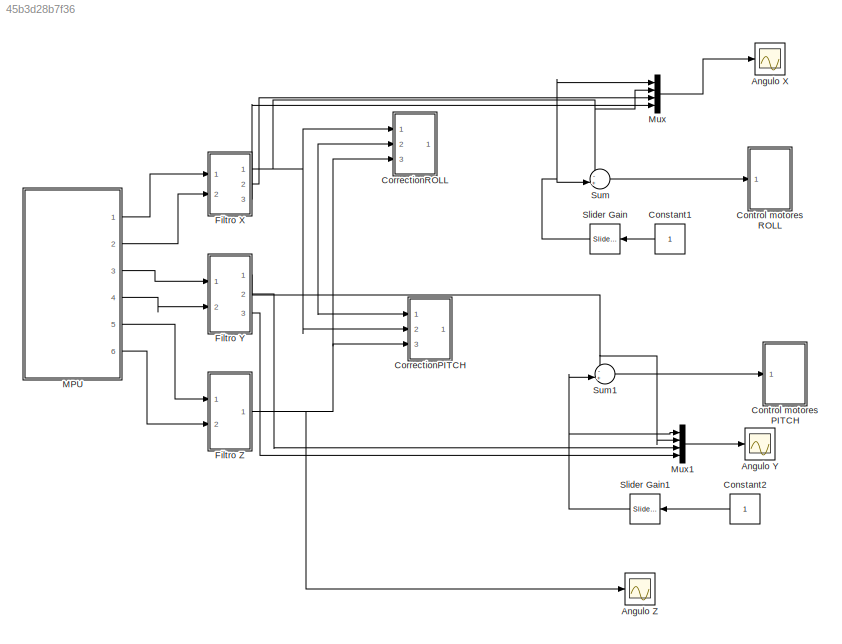
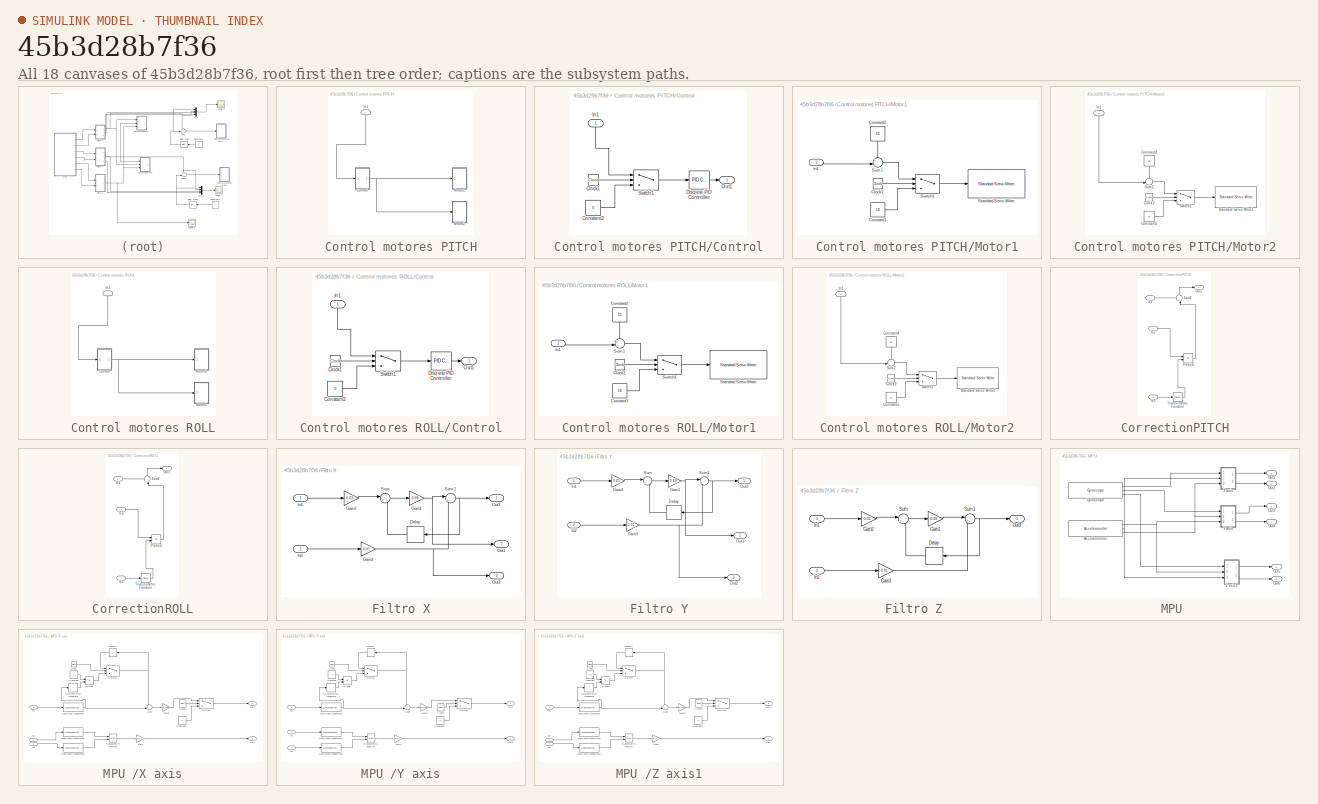
[diagram: thumbnail index - all 18 canvases of the model, root first then tree order]
MODEL slx_45b3d28b7f36
KIND model
CONFIG AbsTol = auto
CONFIG FixedStep = 0.03
CONFIG MaxStep = auto
CONFIG MinStep = auto
CONFIG RelTol = 1e-3
CONFIG SampleTimeConstraint = Unconstrained
CONFIG Solver = FixedStepDiscrete
CONFIG SolverMode = Auto
CONFIG SolverName = FixedStepDiscrete
CONFIG StartTime = 0.0
CONFIG StopTime = inf
BLOCK [Scope] Angulo X
  Ports = [1]
  ScopeSpecificationString = Simulink.scopes.TimeScopeBlockCfg('CurrentConfiguration', extmgr.ConfigurationSet(extmgr.Configuration('Core','General UI',true),extmgr.Configuration('Core','Source UI',true),extmgr.Configuration('Sources','WiredSimulink',true,'DataLoggingLimitDataPoints',true,'DataLoggingSaveFormat','Array','DataLoggingDecimation','1','DataLoggingDecimateData',true),extmgr.Configuration('Visuals','Time Domain',tr...<+1583ch>
BLOCK [Scope] Angulo Y
  Ports = [1]
  ScopeSpecificationString = Simulink.scopes.TimeScopeBlockCfg('CurrentConfiguration', extmgr.ConfigurationSet(extmgr.Configuration('Core','General UI',true),extmgr.Configuration('Core','Source UI',true),extmgr.Configuration('Sources','WiredSimulink',true,'DataLoggingVariableName','ScopeData1','DataLoggingLimitDataPoints',true,'DataLoggingSaveFormat','Array','DataLoggingDecimation','1','DataLoggingDecimateData',true),extmgr.C...<+1675ch>
BLOCK [Scope] Angulo Z 
  Ports = [1]
  ScopeSpecificationString = Simulink.scopes.TimeScopeBlockCfg('CurrentConfiguration', extmgr.ConfigurationSet(extmgr.Configuration('Core','General UI',true),extmgr.Configuration('Core','Source UI',true),extmgr.Configuration('Sources','WiredSimulink',true,'DataLoggingVariableName','ScopeData2','DataLoggingLimitDataPoints',true,'DataLoggingSaveFormat','Array','DataLoggingDecimation','1','DataLoggingDecimateData',true),extmgr.C...<+1587ch>
BLOCK [Constant] Constant1
BLOCK [Constant] Constant2
BLOCK [SubSystem] Control motores PITCH
  Ports = [1]
  RequestExecContextInheritance = off
  Variant = off
BLOCK [SubSystem] Control motores PITCH/Control
  Ports = [1, 1]
  RequestExecContextInheritance = off
  Variant = off
BLOCK [Clock] Control motores PITCH/Control/Clock1
BLOCK [Constant] Control motores PITCH/Control/Constant2
  Value = 0
BLOCK [Reference] Control motores PITCH/Control/Discrete PID Controller  REF=simulink/Continuous/PID Controller
  Ports = [1, 1]
  SourceBlock = simulink/Continuous/PID Controller
  SourceType = PID 1dof
BLOCK [Inport] Control motores PITCH/Control/In1
  IconDisplay = Port number
BLOCK [Outport] Control motores PITCH/Control/Out1
  IconDisplay = Port number
BLOCK [Switch] Control motores PITCH/Control/Switch1
  Criteria = u2 > Threshold
  InputSameDT = off
  SaturateOnIntegerOverflow = off
  Threshold = 3
BLOCK [Inport] Control motores PITCH/In1
  IconDisplay = Port number
BLOCK [SubSystem] Control motores PITCH/Motor1
  Ports = [1]
  RequestExecContextInheritance = off
  Variant = off
BLOCK [Clock] Control motores PITCH/Motor1/Clock1
BLOCK [Constant] Control motores PITCH/Motor1/Constant2
  Value = 55
BLOCK [Constant] Control motores PITCH/Motor1/Constant3
  Value = 18
BLOCK [Inport] Control motores PITCH/Motor1/In1
  IconDisplay = Port number
BLOCK [Reference] Control motores PITCH/Motor1/Standard Servo Write  REF=arduinolib/Standard Servo Write
  Ports = [1]
  SourceBlock = arduinolib/Standard Servo Write
  SourceType = Arduino Standard Servo Write
BLOCK [Sum] Control motores PITCH/Motor1/Sum1
  IconShape = round
  InputSameDT = off
  Inputs = +-|
  OutDataTypeStr = Inherit: Inherit via internal rule
  Ports = [2, 1]
  SaturateOnIntegerOverflow = off
BLOCK [Switch] Control motores PITCH/Motor1/Switch1
  Criteria = u2 > Threshold
  InputSameDT = off
  SaturateOnIntegerOverflow = off
  Threshold = 3
BLOCK [SubSystem] Control motores PITCH/Motor2
  Ports = [1]
  RequestExecContextInheritance = off
  Variant = off
BLOCK [Clock] Control motores PITCH/Motor2/Clock2
BLOCK [Constant] Control motores PITCH/Motor2/Constant4
  Value = 55
BLOCK [Constant] Control motores PITCH/Motor2/Constant5
  Value = 18
BLOCK [Inport] Control motores PITCH/Motor2/In1
  IconDisplay = Port number
BLOCK [Reference] Control motores PITCH/Motor2/Standard Servo Write1  REF=arduinolib/Standard Servo Write
  Ports = [1]
  SourceBlock = arduinolib/Standard Servo Write
  SourceType = Arduino Standard Servo Write
BLOCK [Sum] Control motores PITCH/Motor2/Sum2
  IconShape = round
  InputSameDT = off
  Inputs = ++|
  OutDataTypeStr = Inherit: Inherit via internal rule
  Ports = [2, 1]
  SaturateOnIntegerOverflow = off
BLOCK [Switch] Control motores PITCH/Motor2/Switch2
  Criteria = u2 > Threshold
  InputSameDT = off
  SaturateOnIntegerOverflow = off
  Threshold = 3
BLOCK [SubSystem] Control motores ROLL
  Ports = [1]
  RequestExecContextInheritance = off
  Variant = off
BLOCK [SubSystem] Control motores ROLL/Control
  Ports = [1, 1]
  RequestExecContextInheritance = off
  Variant = off
BLOCK [Clock] Control motores ROLL/Control/Clock1
BLOCK [Constant] Control motores ROLL/Control/Constant2
  Value = 0
BLOCK [Reference] Control motores ROLL/Control/Discrete PID Controller  REF=simulink/Continuous/PID Controller
  Ports = [1, 1]
  SourceBlock = simulink/Continuous/PID Controller
  SourceType = PID 1dof
BLOCK [Inport] Control motores ROLL/Control/In1
  IconDisplay = Port number
BLOCK [Outport] Control motores ROLL/Control/Out1
  IconDisplay = Port number
BLOCK [Switch] Control motores ROLL/Control/Switch1
  Criteria = u2 > Threshold
  InputSameDT = off
  SaturateOnIntegerOverflow = off
  Threshold = 3
BLOCK [Inport] Control motores ROLL/In1
  IconDisplay = Port number
BLOCK [SubSystem] Control motores ROLL/Motor1
  Ports = [1]
  RequestExecContextInheritance = off
  Variant = off
BLOCK [Clock] Control motores ROLL/Motor1/Clock1
BLOCK [Constant] Control motores ROLL/Motor1/Constant2
  Value = 55
BLOCK [Constant] Control motores ROLL/Motor1/Constant3
  Value = 18
BLOCK [Inport] Control motores ROLL/Motor1/In1
  IconDisplay = Port number
BLOCK [Reference] Control motores ROLL/Motor1/Standard Servo Write  REF=arduinolib/Standard Servo Write
  Ports = [1]
  SourceBlock = arduinolib/Standard Servo Write
  SourceType = Arduino Standard Servo Write
BLOCK [Sum] Control motores ROLL/Motor1/Sum1
  IconShape = round
  InputSameDT = off
  Inputs = +-|
  OutDataTypeStr = Inherit: Inherit via internal rule
  Ports = [2, 1]
  SaturateOnIntegerOverflow = off
BLOCK [Switch] Control motores ROLL/Motor1/Switch1
  Criteria = u2 > Threshold
  InputSameDT = off
  SaturateOnIntegerOverflow = off
  Threshold = 3
BLOCK [SubSystem] Control motores ROLL/Motor2
  Ports = [1]
  RequestExecContextInheritance = off
  Variant = off
BLOCK [Clock] Control motores ROLL/Motor2/Clock2
BLOCK [Constant] Control motores ROLL/Motor2/Constant4
  Value = 55
BLOCK [Constant] Control motores ROLL/Motor2/Constant5
  Value = 18
BLOCK [Inport] Control motores ROLL/Motor2/In1
  IconDisplay = Port number
BLOCK [Reference] Control motores ROLL/Motor2/Standard Servo Write1  REF=arduinolib/Standard Servo Write
  Ports = [1]
  SourceBlock = arduinolib/Standard Servo Write
  SourceType = Arduino Standard Servo Write
BLOCK [Sum] Control motores ROLL/Motor2/Sum2
  IconShape = round
  InputSameDT = off
  Inputs = ++|
  OutDataTypeStr = Inherit: Inherit via internal rule
  Ports = [2, 1]
  SaturateOnIntegerOverflow = off
BLOCK [Switch] Control motores ROLL/Motor2/Switch2
  Criteria = u2 > Threshold
  InputSameDT = off
  SaturateOnIntegerOverflow = off
  Threshold = 3
BLOCK [SubSystem] CorrectionPITCH
  Commented = on
  Ports = [3, 1]
  RequestExecContextInheritance = off
  Variant = off
BLOCK [Inport] CorrectionPITCH/In1
  IconDisplay = Port number
BLOCK [Inport] CorrectionPITCH/In2
  IconDisplay = Port number
  Port = 2
BLOCK [Inport] CorrectionPITCH/In3
  IconDisplay = Port number
  Port = 3
BLOCK [Outport] CorrectionPITCH/Out1
  IconDisplay = Port number
BLOCK [Product] CorrectionPITCH/Product
  InputSameDT = off
  OutDataTypeStr = Inherit: Inherit via internal rule
  Ports = [2, 1]
  RndMeth = Floor
  SaturateOnIntegerOverflow = off
BLOCK [Sum] CorrectionPITCH/Sum2
  IconShape = round
  InputSameDT = off
  Inputs = ++|
  OutDataTypeStr = Inherit: Inherit via internal rule
  Ports = [2, 1]
  SaturateOnIntegerOverflow = off
BLOCK [Trigonometry] CorrectionPITCH/Trigonometric Function
  Ports = [1, 1]
BLOCK [SubSystem] CorrectionROLL
  Commented = on
  Ports = [3, 1]
  RequestExecContextInheritance = off
  Variant = off
BLOCK [Inport] CorrectionROLL/In1
  IconDisplay = Port number
BLOCK [Inport] CorrectionROLL/In2
  IconDisplay = Port number
  Port = 2
BLOCK [Inport] CorrectionROLL/In3
  IconDisplay = Port number
  Port = 3
BLOCK [Outport] CorrectionROLL/Out1
  IconDisplay = Port number
BLOCK [Product] CorrectionROLL/Product
  InputSameDT = off
  OutDataTypeStr = Inherit: Inherit via internal rule
  Ports = [2, 1]
  RndMeth = Floor
  SaturateOnIntegerOverflow = off
BLOCK [Sum] CorrectionROLL/Sum2
  IconShape = round
  InputSameDT = off
  Inputs = +-|
  OutDataTypeStr = Inherit: Inherit via internal rule
  Ports = [2, 1]
  SaturateOnIntegerOverflow = off
BLOCK [Trigonometry] CorrectionROLL/Trigonometric Function
  Ports = [1, 1]
BLOCK [SubSystem] Filtro X
  Ports = [2, 3]
  RequestExecContextInheritance = off
  Variant = off
BLOCK [Delay] Filtro X/Delay
  DelayLength = 1
  InitialCondition = 0
  InputPortMap = u0
  Ports = [1, 1]
BLOCK [Gain] Filtro X/Gain1
  Gain = 0.99
  OutDataTypeStr = Inherit: Inherit via internal rule
  ParamDataTypeStr = Inherit: Inherit via internal rule
  SaturateOnIntegerOverflow = off
BLOCK [Gain] Filtro X/Gain2
  Gain = 0.03
  OutDataTypeStr = Inherit: Inherit via internal rule
  ParamDataTypeStr = Inherit: Inherit via internal rule
  SaturateOnIntegerOverflow = off
BLOCK [Gain] Filtro X/Gain3
  Gain = 0.01
  OutDataTypeStr = Inherit: Inherit via internal rule
  ParamDataTypeStr = Inherit: Inherit via internal rule
  SaturateOnIntegerOverflow = off
BLOCK [Inport] Filtro X/In1
  IconDisplay = Port number
BLOCK [Inport] Filtro X/In2
  IconDisplay = Port number
  Port = 2
BLOCK [Outport] Filtro X/Out1
  IconDisplay = Port number
  Port = 2
BLOCK [Outport] Filtro X/Out2
  IconDisplay = Port number
  Port = 3
BLOCK [Outport] Filtro X/Out3
  IconDisplay = Port number
BLOCK [Sum] Filtro X/Sum
  IconShape = round
  InputSameDT = off
  Inputs = |++
  OutDataTypeStr = Inherit: Inherit via internal rule
  Ports = [2, 1]
  SaturateOnIntegerOverflow = off
BLOCK [Sum] Filtro X/Sum1
  IconShape = round
  InputSameDT = off
  Inputs = |++
  OutDataTypeStr = Inherit: Inherit via internal rule
  Ports = [2, 1]
  SaturateOnIntegerOverflow = off
BLOCK [SubSystem] Filtro Y
  Ports = [2, 3]
  RequestExecContextInheritance = off
  Variant = off
BLOCK [Delay] Filtro Y/Delay
  DelayLength = 1
  InitialCondition = 0
  InputPortMap = u0
  Ports = [1, 1]
BLOCK [Gain] Filtro Y/Gain1
  Gain = 0.99
  OutDataTypeStr = Inherit: Inherit via internal rule
  ParamDataTypeStr = Inherit: Inherit via internal rule
  SaturateOnIntegerOverflow = off
BLOCK [Gain] Filtro Y/Gain2
  Gain = 0.03
  OutDataTypeStr = Inherit: Inherit via internal rule
  ParamDataTypeStr = Inherit: Inherit via internal rule
  SaturateOnIntegerOverflow = off
BLOCK [Gain] Filtro Y/Gain3
  Gain = 0.01
  OutDataTypeStr = Inherit: Inherit via internal rule
  ParamDataTypeStr = Inherit: Inherit via internal rule
  SaturateOnIntegerOverflow = off
BLOCK [Inport] Filtro Y/In1
  IconDisplay = Port number
BLOCK [Inport] Filtro Y/In2
  IconDisplay = Port number
  Port = 2
BLOCK [Outport] Filtro Y/Out1
  IconDisplay = Port number
  Port = 2
BLOCK [Outport] Filtro Y/Out2
  IconDisplay = Port number
  Port = 3
BLOCK [Outport] Filtro Y/Out3
  IconDisplay = Port number
BLOCK [Sum] Filtro Y/Sum
  IconShape = round
  InputSameDT = off
  Inputs = |++
  OutDataTypeStr = Inherit: Inherit via internal rule
  Ports = [2, 1]
  SaturateOnIntegerOverflow = off
BLOCK [Sum] Filtro Y/Sum1
  IconShape = round
  InputSameDT = off
  Inputs = |++
  OutDataTypeStr = Inherit: Inherit via internal rule
  Ports = [2, 1]
  SaturateOnIntegerOverflow = off
BLOCK [SubSystem] Filtro Z 
  Ports = [2, 1]
  RequestExecContextInheritance = off
  Variant = off
BLOCK [Delay] Filtro Z /Delay
  DelayLength = 1
  InitialCondition = 0
  InputPortMap = u0
  Ports = [1, 1]
BLOCK [Gain] Filtro Z /Gain1
  Gain = 0.99
  OutDataTypeStr = Inherit: Inherit via internal rule
  ParamDataTypeStr = Inherit: Inherit via internal rule
  SaturateOnIntegerOverflow = off
BLOCK [Gain] Filtro Z /Gain2
  Gain = 0.03
  OutDataTypeStr = Inherit: Inherit via internal rule
  ParamDataTypeStr = Inherit: Inherit via internal rule
  SaturateOnIntegerOverflow = off
BLOCK [Gain] Filtro Z /Gain3
  Gain = 0.01
  OutDataTypeStr = Inherit: Inherit via internal rule
  ParamDataTypeStr = Inherit: Inherit via internal rule
  SaturateOnIntegerOverflow = off
BLOCK [Inport] Filtro Z /In1
  IconDisplay = Port number
BLOCK [Inport] Filtro Z /In2
  IconDisplay = Port number
  Port = 2
BLOCK [Outport] Filtro Z /Out3
  IconDisplay = Port number
BLOCK [Sum] Filtro Z /Sum
  IconShape = round
  InputSameDT = off
  Inputs = |++
  OutDataTypeStr = Inherit: Inherit via internal rule
  Ports = [2, 1]
  SaturateOnIntegerOverflow = off
BLOCK [Sum] Filtro Z /Sum1
  IconShape = round
  InputSameDT = off
  Inputs = |++
  OutDataTypeStr = Inherit: Inherit via internal rule
  Ports = [2, 1]
  SaturateOnIntegerOverflow = off
BLOCK [SubSystem] MPU 
  Ports = [0, 6]
  RequestExecContextInheritance = off
  Variant = off
BLOCK [Reference] MPU /Accelerometer  REF=RASPlib/Accelerometer
  Ports = [0, 3]
  SourceBlock = RASPlib/Accelerometer
  SourceType = soMPU6050Accel
BLOCK [Reference] MPU /Gyroscope  REF=RASPlib/Gyroscope
  Ports = [0, 3]
  SourceBlock = RASPlib/Gyroscope
  SourceType = soMPU6050Gyro
BLOCK [Outport] MPU /Out1
  IconDisplay = Port number
BLOCK [Outport] MPU /Out2
  IconDisplay = Port number
  Port = 2
BLOCK [Outport] MPU /Out3
  IconDisplay = Port number
  Port = 3
BLOCK [Outport] MPU /Out4
  IconDisplay = Port number
  Port = 4
BLOCK [Outport] MPU /Out5
  IconDisplay = Port number
  Port = 5
BLOCK [Outport] MPU /Out6
  IconDisplay = Port number
  Port = 6
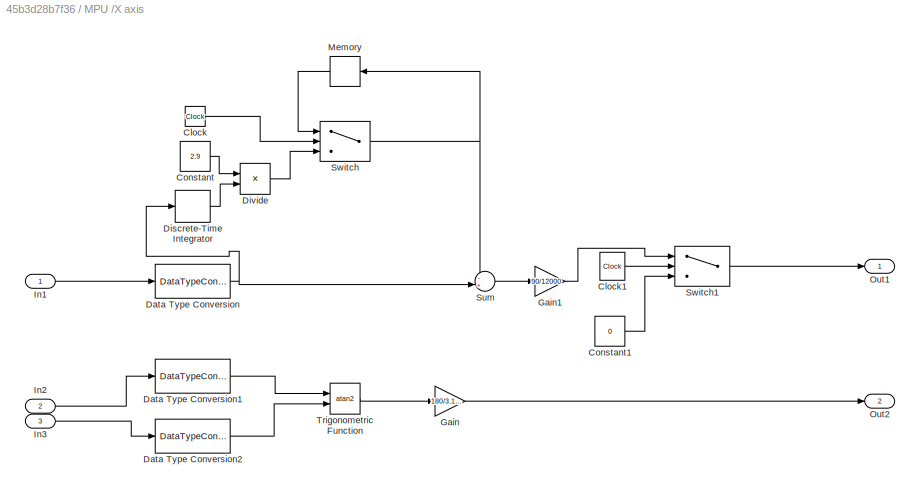
BLOCK [SubSystem] MPU /X axis
  Ports = [3, 2]
  RequestExecContextInheritance = off
  Variant = off
BLOCK [Clock] MPU /X axis/Clock
BLOCK [Clock] MPU /X axis/Clock1
BLOCK [Constant] MPU /X axis/Constant
  Value = 2.9
BLOCK [Constant] MPU /X axis/Constant1
  Value = 0
BLOCK [DataTypeConversion] MPU /X axis/Data Type Conversion
  OutDataTypeStr = double
  RndMeth = Floor
  SaturateOnIntegerOverflow = off
BLOCK [DataTypeConversion] MPU /X axis/Data Type Conversion1
  OutDataTypeStr = double
  RndMeth = Floor
  SaturateOnIntegerOverflow = off
BLOCK [DataTypeConversion] MPU /X axis/Data Type Conversion2
  OutDataTypeStr = double
  RndMeth = Floor
  SaturateOnIntegerOverflow = off
BLOCK [DiscreteIntegrator] MPU /X axis/Discrete-Time Integrator
  ICPrevOutput = DiscIntNeverNeededParam
  ICPrevScaledInput = DiscIntNeverNeededParam
  InitialConditionSetting = State (most efficient)
  Ports = [1, 1]
  SampleTime = -1
BLOCK [Product] MPU /X axis/Divide
  InputSameDT = off
  Inputs = /*
  OutDataTypeStr = Inherit: Inherit via internal rule
  Ports = [2, 1]
  RndMeth = Floor
  SaturateOnIntegerOverflow = off
BLOCK [Gain] MPU /X axis/Gain
  Gain = 180/3.1416
  OutDataTypeStr = Inherit: Inherit via internal rule
  ParamDataTypeStr = Inherit: Inherit via internal rule
  SaturateOnIntegerOverflow = off
BLOCK [Gain] MPU /X axis/Gain1
  Gain = 90/12000
  OutDataTypeStr = Inherit: Inherit via internal rule
  ParamDataTypeStr = Inherit: Inherit via internal rule
  SaturateOnIntegerOverflow = off
BLOCK [Inport] MPU /X axis/In1
  IconDisplay = Port number
BLOCK [Inport] MPU /X axis/In2
  IconDisplay = Port number
  Port = 2
BLOCK [Inport] MPU /X axis/In3
  IconDisplay = Port number
  Port = 3
BLOCK [Memory] MPU /X axis/Memory
BLOCK [Outport] MPU /X axis/Out1
  IconDisplay = Port number
BLOCK [Outport] MPU /X axis/Out2
  IconDisplay = Port number
  Port = 2
BLOCK [Sum] MPU /X axis/Sum
  IconShape = round
  InputSameDT = off
  Inputs = -+|
  OutDataTypeStr = Inherit: Inherit via internal rule
  Ports = [2, 1]
  SaturateOnIntegerOverflow = off
BLOCK [Switch] MPU /X axis/Switch
  Criteria = u2 > Threshold
  InputSameDT = off
  SaturateOnIntegerOverflow = off
  Threshold = 2.9
BLOCK [Switch] MPU /X axis/Switch1
  Criteria = u2 > Threshold
  InputSameDT = off
  SaturateOnIntegerOverflow = off
  Threshold = 2.9
BLOCK [Trigonometry] MPU /X axis/Trigonometric Function
  Operator = atan2
  Ports = [2, 1]
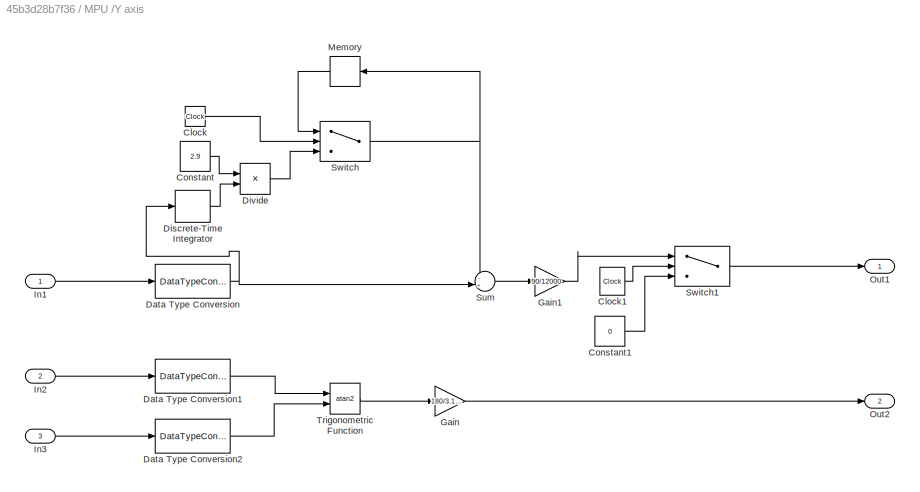
BLOCK [SubSystem] MPU /Y axis
  Ports = [3, 2]
  RequestExecContextInheritance = off
  Variant = off
BLOCK [Clock] MPU /Y axis/Clock
BLOCK [Clock] MPU /Y axis/Clock1
BLOCK [Constant] MPU /Y axis/Constant
  Value = 2.9
BLOCK [Constant] MPU /Y axis/Constant1
  Value = 0
BLOCK [DataTypeConversion] MPU /Y axis/Data Type Conversion
  OutDataTypeStr = double
  RndMeth = Floor
  SaturateOnIntegerOverflow = off
BLOCK [DataTypeConversion] MPU /Y axis/Data Type Conversion1
  OutDataTypeStr = double
  RndMeth = Floor
  SaturateOnIntegerOverflow = off
BLOCK [DataTypeConversion] MPU /Y axis/Data Type Conversion2
  OutDataTypeStr = double
  RndMeth = Floor
  SaturateOnIntegerOverflow = off
BLOCK [DiscreteIntegrator] MPU /Y axis/Discrete-Time Integrator
  ICPrevOutput = DiscIntNeverNeededParam
  ICPrevScaledInput = DiscIntNeverNeededParam
  InitialConditionSetting = State (most efficient)
  Ports = [1, 1]
  SampleTime = -1
BLOCK [Product] MPU /Y axis/Divide
  InputSameDT = off
  Inputs = /*
  OutDataTypeStr = Inherit: Inherit via internal rule
  Ports = [2, 1]
  RndMeth = Floor
  SaturateOnIntegerOverflow = off
BLOCK [Gain] MPU /Y axis/Gain
  Gain = 180/3.1416
  OutDataTypeStr = Inherit: Inherit via internal rule
  ParamDataTypeStr = Inherit: Inherit via internal rule
  SaturateOnIntegerOverflow = off
BLOCK [Gain] MPU /Y axis/Gain1
  Gain = 90/12000
  OutDataTypeStr = Inherit: Inherit via internal rule
  ParamDataTypeStr = Inherit: Inherit via internal rule
  SaturateOnIntegerOverflow = off
BLOCK [Inport] MPU /Y axis/In1
  IconDisplay = Port number
BLOCK [Inport] MPU /Y axis/In2
  IconDisplay = Port number
  Port = 2
BLOCK [Inport] MPU /Y axis/In3
  IconDisplay = Port number
  Port = 3
BLOCK [Memory] MPU /Y axis/Memory
BLOCK [Outport] MPU /Y axis/Out1
  IconDisplay = Port number
BLOCK [Outport] MPU /Y axis/Out2
  IconDisplay = Port number
  Port = 2
BLOCK [Sum] MPU /Y axis/Sum
  IconShape = round
  InputSameDT = off
  Inputs = -+|
  OutDataTypeStr = Inherit: Inherit via internal rule
  Ports = [2, 1]
  SaturateOnIntegerOverflow = off
BLOCK [Switch] MPU /Y axis/Switch
  Criteria = u2 > Threshold
  InputSameDT = off
  SaturateOnIntegerOverflow = off
  Threshold = 2.9
BLOCK [Switch] MPU /Y axis/Switch1
  Criteria = u2 > Threshold
  InputSameDT = off
  SaturateOnIntegerOverflow = off
  Threshold = 2.9
BLOCK [Trigonometry] MPU /Y axis/Trigonometric Function
  Operator = atan2
  Ports = [2, 1]
BLOCK [SubSystem] MPU /Z axis1
  Ports = [3, 2]
  RequestExecContextInheritance = off
  Variant = off
BLOCK [Clock] MPU /Z axis1/Clock
BLOCK [Clock] MPU /Z axis1/Clock1
BLOCK [Constant] MPU /Z axis1/Constant
  Value = 2.9
BLOCK [Constant] MPU /Z axis1/Constant1
  Value = 0
BLOCK [DataTypeConversion] MPU /Z axis1/Data Type Conversion
  OutDataTypeStr = double
  RndMeth = Floor
  SaturateOnIntegerOverflow = off
BLOCK [DataTypeConversion] MPU /Z axis1/Data Type Conversion1
  OutDataTypeStr = double
  RndMeth = Floor
  SaturateOnIntegerOverflow = off
BLOCK [DataTypeConversion] MPU /Z axis1/Data Type Conversion2
  OutDataTypeStr = double
  RndMeth = Floor
  SaturateOnIntegerOverflow = off
BLOCK [DiscreteIntegrator] MPU /Z axis1/Discrete-Time Integrator
  ICPrevOutput = DiscIntNeverNeededParam
  ICPrevScaledInput = DiscIntNeverNeededParam
  InitialConditionSetting = State (most efficient)
  Ports = [1, 1]
  SampleTime = -1
BLOCK [Product] MPU /Z axis1/Divide
  InputSameDT = off
  Inputs = /*
  OutDataTypeStr = Inherit: Inherit via internal rule
  Ports = [2, 1]
  RndMeth = Floor
  SaturateOnIntegerOverflow = off
BLOCK [Gain] MPU /Z axis1/Gain
  Gain = 180/3.1416
  OutDataTypeStr = Inherit: Inherit via internal rule
  ParamDataTypeStr = Inherit: Inherit via internal rule
  SaturateOnIntegerOverflow = off
BLOCK [Gain] MPU /Z axis1/Gain1
  Gain = 90/12000
  OutDataTypeStr = Inherit: Inherit via internal rule
  ParamDataTypeStr = Inherit: Inherit via internal rule
  SaturateOnIntegerOverflow = off
BLOCK [Inport] MPU /Z axis1/In1
  IconDisplay = Port number
BLOCK [Inport] MPU /Z axis1/In2
  IconDisplay = Port number
  Port = 2
BLOCK [Inport] MPU /Z axis1/In3
  IconDisplay = Port number
  Port = 3
BLOCK [Memory] MPU /Z axis1/Memory
BLOCK [Outport] MPU /Z axis1/Out1
  IconDisplay = Port number
BLOCK [Outport] MPU /Z axis1/Out2
  IconDisplay = Port number
  Port = 2
BLOCK [Sum] MPU /Z axis1/Sum
  IconShape = round
  InputSameDT = off
  Inputs = -+|
  OutDataTypeStr = Inherit: Inherit via internal rule
  Ports = [2, 1]
  SaturateOnIntegerOverflow = off
BLOCK [Switch] MPU /Z axis1/Switch
  Criteria = u2 > Threshold
  InputSameDT = off
  SaturateOnIntegerOverflow = off
  Threshold = 2.9
BLOCK [Switch] MPU /Z axis1/Switch1
  Criteria = u2 > Threshold
  InputSameDT = off
  SaturateOnIntegerOverflow = off
  Threshold = 2.9
BLOCK [Trigonometry] MPU /Z axis1/Trigonometric Function
  Operator = atan2
  Ports = [2, 1]
BLOCK [Mux] Mux
  DisplayOption = bar
  Ports = [4, 1]
BLOCK [Mux] Mux1
  DisplayOption = bar
  Ports = [4, 1]
BLOCK [Reference] Slider Gain  REF=simulink/Math
Operations/Slider
Gain
  Ports = [1, 1]
  SourceBlock = simulink/Math\nOperations/Slider\nGain
  SourceType = Slider Gain
BLOCK [Reference] Slider Gain1  REF=simulink/Math
Operations/Slider
Gain
  Ports = [1, 1]
  SourceBlock = simulink/Math\nOperations/Slider\nGain
  SourceType = Slider Gain
BLOCK [Sum] Sum
  IconShape = round
  InputSameDT = off
  Inputs = -+|
  OutDataTypeStr = Inherit: Inherit via internal rule
  Ports = [2, 1]
  SaturateOnIntegerOverflow = off
BLOCK [Sum] Sum1
  IconShape = round
  InputSameDT = off
  Inputs = -+|
  OutDataTypeStr = Inherit: Inherit via internal rule
  Ports = [2, 1]
  SaturateOnIntegerOverflow = off
LINE Constant1:1 -> Slider Gain:1
LINE Constant2:1 -> Slider Gain1:1
LINE Control motores PITCH/Control/Clock1:1 -> Control motores PITCH/Control/Switch1:2
LINE Control motores PITCH/Control/Constant2:1 -> Control motores PITCH/Control/Switch1:3
LINE Control motores PITCH/Control/Discrete PID Controller:1 -> Control motores PITCH/Control/Out1:1
LINE Control motores PITCH/Control/In1:1 -> Control motores PITCH/Control/Switch1:1
LINE Control motores PITCH/Control/Switch1:1 -> Control motores PITCH/Control/Discrete PID Controller:1
NET Control motores PITCH/Control:1 -> Control motores PITCH/Motor1:1, Control motores PITCH/Motor2:1
LINE Control motores PITCH/In1:1 -> Control motores PITCH/Control:1
LINE Control motores PITCH/Motor1/Clock1:1 -> Control motores PITCH/Motor1/Switch1:2
LINE Control motores PITCH/Motor1/Constant2:1 -> Control motores PITCH/Motor1/Sum1:1
LINE Control motores PITCH/Motor1/Constant3:1 -> Control motores PITCH/Motor1/Switch1:3
LINE Control motores PITCH/Motor1/In1:1 -> Control motores PITCH/Motor1/Sum1:2
LINE Control motores PITCH/Motor1/Sum1:1 -> Control motores PITCH/Motor1/Switch1:1
LINE Control motores PITCH/Motor1/Switch1:1 -> Control motores PITCH/Motor1/Standard Servo Write:1
LINE Control motores PITCH/Motor2/Clock2:1 -> Control motores PITCH/Motor2/Switch2:2
LINE Control motores PITCH/Motor2/Constant4:1 -> Control motores PITCH/Motor2/Sum2:1
LINE Control motores PITCH/Motor2/Constant5:1 -> Control motores PITCH/Motor2/Switch2:3
LINE Control motores PITCH/Motor2/In1:1 -> Control motores PITCH/Motor2/Sum2:2
LINE Control motores PITCH/Motor2/Sum2:1 -> Control motores PITCH/Motor2/Switch2:1
LINE Control motores PITCH/Motor2/Switch2:1 -> Control motores PITCH/Motor2/Standard Servo Write1:1
LINE Control motores ROLL/Control/Clock1:1 -> Control motores ROLL/Control/Switch1:2
LINE Control motores ROLL/Control/Constant2:1 -> Control motores ROLL/Control/Switch1:3
LINE Control motores ROLL/Control/Discrete PID Controller:1 -> Control motores ROLL/Control/Out1:1
LINE Control motores ROLL/Control/In1:1 -> Control motores ROLL/Control/Switch1:1
LINE Control motores ROLL/Control/Switch1:1 -> Control motores ROLL/Control/Discrete PID Controller:1
NET Control motores ROLL/Control:1 -> Control motores ROLL/Motor1:1, Control motores ROLL/Motor2:1
LINE Control motores ROLL/In1:1 -> Control motores ROLL/Control:1
LINE Control motores ROLL/Motor1/Clock1:1 -> Control motores ROLL/Motor1/Switch1:2
LINE Control motores ROLL/Motor1/Constant2:1 -> Control motores ROLL/Motor1/Sum1:1
LINE Control motores ROLL/Motor1/Constant3:1 -> Control motores ROLL/Motor1/Switch1:3
LINE Control motores ROLL/Motor1/In1:1 -> Control motores ROLL/Motor1/Sum1:2
LINE Control motores ROLL/Motor1/Sum1:1 -> Control motores ROLL/Motor1/Switch1:1
LINE Control motores ROLL/Motor1/Switch1:1 -> Control motores ROLL/Motor1/Standard Servo Write:1
LINE Control motores ROLL/Motor2/Clock2:1 -> Control motores ROLL/Motor2/Switch2:2
LINE Control motores ROLL/Motor2/Constant4:1 -> Control motores ROLL/Motor2/Sum2:1
LINE Control motores ROLL/Motor2/Constant5:1 -> Control motores ROLL/Motor2/Switch2:3
LINE Control motores ROLL/Motor2/In1:1 -> Control motores ROLL/Motor2/Sum2:2
LINE Control motores ROLL/Motor2/Sum2:1 -> Control motores ROLL/Motor2/Switch2:1
LINE Control motores ROLL/Motor2/Switch2:1 -> Control motores ROLL/Motor2/Standard Servo Write1:1
LINE CorrectionPITCH/In1:1 -> CorrectionPITCH/Sum2:1
LINE CorrectionPITCH/In2:1 -> CorrectionPITCH/Product:1
LINE CorrectionPITCH/In3:1 -> CorrectionPITCH/Trigonometric Function:1
LINE CorrectionPITCH/Product:1 -> CorrectionPITCH/Sum2:2
LINE CorrectionPITCH/Sum2:1 -> CorrectionPITCH/Out1:1
LINE CorrectionPITCH/Trigonometric Function:1 -> CorrectionPITCH/Product:2
LINE CorrectionROLL/In1:1 -> CorrectionROLL/Sum2:1
LINE CorrectionROLL/In2:1 -> CorrectionROLL/Product:1
LINE CorrectionROLL/In3:1 -> CorrectionROLL/Trigonometric Function:1
LINE CorrectionROLL/Product:1 -> CorrectionROLL/Sum2:2
LINE CorrectionROLL/Sum2:1 -> CorrectionROLL/Out1:1
LINE CorrectionROLL/Trigonometric Function:1 -> CorrectionROLL/Product:2
LINE Filtro X/Delay:1 -> Filtro X/Sum:2
NET Filtro X/Gain1:1 -> Filtro X/Out1:1, Filtro X/Sum1:1
LINE Filtro X/Gain2:1 -> Filtro X/Sum:1
NET Filtro X/Gain3:1 -> Filtro X/Out2:1, Filtro X/Sum1:2
LINE Filtro X/In1:1 -> Filtro X/Gain2:1
LINE Filtro X/In2:1 -> Filtro X/Gain3:1
NET Filtro X/Sum1:1 -> Filtro X/Delay:1, Filtro X/Out3:1
LINE Filtro X/Sum:1 -> Filtro X/Gain1:1
NET Filtro X:1 -> CorrectionPITCH:2, CorrectionROLL:1, Mux:2, Sum:1
LINE Filtro X:2 -> Mux:3
LINE Filtro X:3 -> Mux:4
LINE Filtro Y/Delay:1 -> Filtro Y/Sum:2
NET Filtro Y/Gain1:1 -> Filtro Y/Out1:1, Filtro Y/Sum1:1
LINE Filtro Y/Gain2:1 -> Filtro Y/Sum:1
NET Filtro Y/Gain3:1 -> Filtro Y/Out2:1, Filtro Y/Sum1:2
LINE Filtro Y/In1:1 -> Filtro Y/Gain2:1
LINE Filtro Y/In2:1 -> Filtro Y/Gain3:1
NET Filtro Y/Sum1:1 -> Filtro Y/Delay:1, Filtro Y/Out3:1
LINE Filtro Y/Sum:1 -> Filtro Y/Gain1:1
NET Filtro Y:1 -> CorrectionPITCH:1, CorrectionROLL:2, Mux1:2, Sum1:1
LINE Filtro Y:2 -> Mux1:3
LINE Filtro Y:3 -> Mux1:4
LINE Filtro Z /Delay:1 -> Filtro Z /Sum:2
LINE Filtro Z /Gain1:1 -> Filtro Z /Sum1:1
LINE Filtro Z /Gain2:1 -> Filtro Z /Sum:1
LINE Filtro Z /Gain3:1 -> Filtro Z /Sum1:2
LINE Filtro Z /In1:1 -> Filtro Z /Gain2:1
LINE Filtro Z /In2:1 -> Filtro Z /Gain3:1
NET Filtro Z /Sum1:1 -> Filtro Z /Delay:1, Filtro Z /Out3:1
LINE Filtro Z /Sum:1 -> Filtro Z /Gain1:1
NET Filtro Z :1 -> Angulo Z :1, CorrectionPITCH:3, CorrectionROLL:3
NET MPU /Accelerometer:1 -> MPU /Y axis:3, MPU /Z axis1:2
NET MPU /Accelerometer:2 -> MPU /X axis:2, MPU /Z axis1:3
NET MPU /Accelerometer:3 -> MPU /X axis:3, MPU /Y axis:2
LINE MPU /Gyroscope:1 -> MPU /X axis:1
LINE MPU /Gyroscope:2 -> MPU /Y axis:1
LINE MPU /Gyroscope:3 -> MPU /Z axis1:1
LINE MPU /X axis/Clock1:1 -> MPU /X axis/Switch1:2
LINE MPU /X axis/Clock:1 -> MPU /X axis/Switch:2
LINE MPU /X axis/Constant1:1 -> MPU /X axis/Switch1:3
LINE MPU /X axis/Constant:1 -> MPU /X axis/Divide:1
LINE MPU /X axis/Data Type Conversion1:1 -> MPU /X axis/Trigonometric Function:1
LINE MPU /X axis/Data Type Conversion2:1 -> MPU /X axis/Trigonometric Function:2
NET MPU /X axis/Data Type Conversion:1 -> MPU /X axis/Discrete-Time Integrator:1, MPU /X axis/Sum:2
LINE MPU /X axis/Discrete-Time Integrator:1 -> MPU /X axis/Divide:2
LINE MPU /X axis/Divide:1 -> MPU /X axis/Switch:3
LINE MPU /X axis/Gain1:1 -> MPU /X axis/Switch1:1
LINE MPU /X axis/Gain:1 -> MPU /X axis/Out2:1
LINE MPU /X axis/In1:1 -> MPU /X axis/Data Type Conversion:1
LINE MPU /X axis/In2:1 -> MPU /X axis/Data Type Conversion1:1
LINE MPU /X axis/In3:1 -> MPU /X axis/Data Type Conversion2:1
LINE MPU /X axis/Memory:1 -> MPU /X axis/Switch:1
LINE MPU /X axis/Sum:1 -> MPU /X axis/Gain1:1
LINE MPU /X axis/Switch1:1 -> MPU /X axis/Out1:1
NET MPU /X axis/Switch:1 -> MPU /X axis/Memory:1, MPU /X axis/Sum:1
LINE MPU /X axis/Trigonometric Function:1 -> MPU /X axis/Gain:1
LINE MPU /X axis:1 -> MPU /Out1:1
LINE MPU /X axis:2 -> MPU /Out2:1
LINE MPU /Y axis/Clock1:1 -> MPU /Y axis/Switch1:2
LINE MPU /Y axis/Clock:1 -> MPU /Y axis/Switch:2
LINE MPU /Y axis/Constant1:1 -> MPU /Y axis/Switch1:3
LINE MPU /Y axis/Constant:1 -> MPU /Y axis/Divide:1
LINE MPU /Y axis/Data Type Conversion1:1 -> MPU /Y axis/Trigonometric Function:1
LINE MPU /Y axis/Data Type Conversion2:1 -> MPU /Y axis/Trigonometric Function:2
NET MPU /Y axis/Data Type Conversion:1 -> MPU /Y axis/Discrete-Time Integrator:1, MPU /Y axis/Sum:2
LINE MPU /Y axis/Discrete-Time Integrator:1 -> MPU /Y axis/Divide:2
LINE MPU /Y axis/Divide:1 -> MPU /Y axis/Switch:3
LINE MPU /Y axis/Gain1:1 -> MPU /Y axis/Switch1:1
LINE MPU /Y axis/Gain:1 -> MPU /Y axis/Out2:1
LINE MPU /Y axis/In1:1 -> MPU /Y axis/Data Type Conversion:1
LINE MPU /Y axis/In2:1 -> MPU /Y axis/Data Type Conversion1:1
LINE MPU /Y axis/In3:1 -> MPU /Y axis/Data Type Conversion2:1
LINE MPU /Y axis/Memory:1 -> MPU /Y axis/Switch:1
LINE MPU /Y axis/Sum:1 -> MPU /Y axis/Gain1:1
LINE MPU /Y axis/Switch1:1 -> MPU /Y axis/Out1:1
NET MPU /Y axis/Switch:1 -> MPU /Y axis/Memory:1, MPU /Y axis/Sum:1
LINE MPU /Y axis/Trigonometric Function:1 -> MPU /Y axis/Gain:1
LINE MPU /Y axis:1 -> MPU /Out3:1
LINE MPU /Y axis:2 -> MPU /Out4:1
LINE MPU /Z axis1/Clock1:1 -> MPU /Z axis1/Switch1:2
LINE MPU /Z axis1/Clock:1 -> MPU /Z axis1/Switch:2
LINE MPU /Z axis1/Constant1:1 -> MPU /Z axis1/Switch1:3
LINE MPU /Z axis1/Constant:1 -> MPU /Z axis1/Divide:1
LINE MPU /Z axis1/Data Type Conversion1:1 -> MPU /Z axis1/Trigonometric Function:1
LINE MPU /Z axis1/Data Type Conversion2:1 -> MPU /Z axis1/Trigonometric Function:2
NET MPU /Z axis1/Data Type Conversion:1 -> MPU /Z axis1/Discrete-Time Integrator:1, MPU /Z axis1/Sum:2
LINE MPU /Z axis1/Discrete-Time Integrator:1 -> MPU /Z axis1/Divide:2
LINE MPU /Z axis1/Divide:1 -> MPU /Z axis1/Switch:3
LINE MPU /Z axis1/Gain1:1 -> MPU /Z axis1/Switch1:1
LINE MPU /Z axis1/Gain:1 -> MPU /Z axis1/Out2:1
LINE MPU /Z axis1/In1:1 -> MPU /Z axis1/Data Type Conversion:1
LINE MPU /Z axis1/In2:1 -> MPU /Z axis1/Data Type Conversion1:1
LINE MPU /Z axis1/In3:1 -> MPU /Z axis1/Data Type Conversion2:1
LINE MPU /Z axis1/Memory:1 -> MPU /Z axis1/Switch:1
LINE MPU /Z axis1/Sum:1 -> MPU /Z axis1/Gain1:1
LINE MPU /Z axis1/Switch1:1 -> MPU /Z axis1/Out1:1
NET MPU /Z axis1/Switch:1 -> MPU /Z axis1/Memory:1, MPU /Z axis1/Sum:1
LINE MPU /Z axis1/Trigonometric Function:1 -> MPU /Z axis1/Gain:1
LINE MPU /Z axis1:1 -> MPU /Out5:1
LINE MPU /Z axis1:2 -> MPU /Out6:1
LINE MPU :1 -> Filtro X:1
LINE MPU :2 -> Filtro X:2
LINE MPU :3 -> Filtro Y:1
LINE MPU :4 -> Filtro Y:2
LINE MPU :5 -> Filtro Z :1
LINE MPU :6 -> Filtro Z :2
LINE Mux1:1 -> Angulo Y:1
LINE Mux:1 -> Angulo X:1
NET Slider Gain1:1 -> Mux1:1, Sum1:2
NET Slider Gain:1 -> Mux:1, Sum:2
LINE Sum1:1 -> Control motores PITCH:1
LINE Sum:1 -> Control motores ROLL:1
note: NET lines group one-source signal fan-out (src -> all destinations, sorted); 1:1 wires keep LINE
